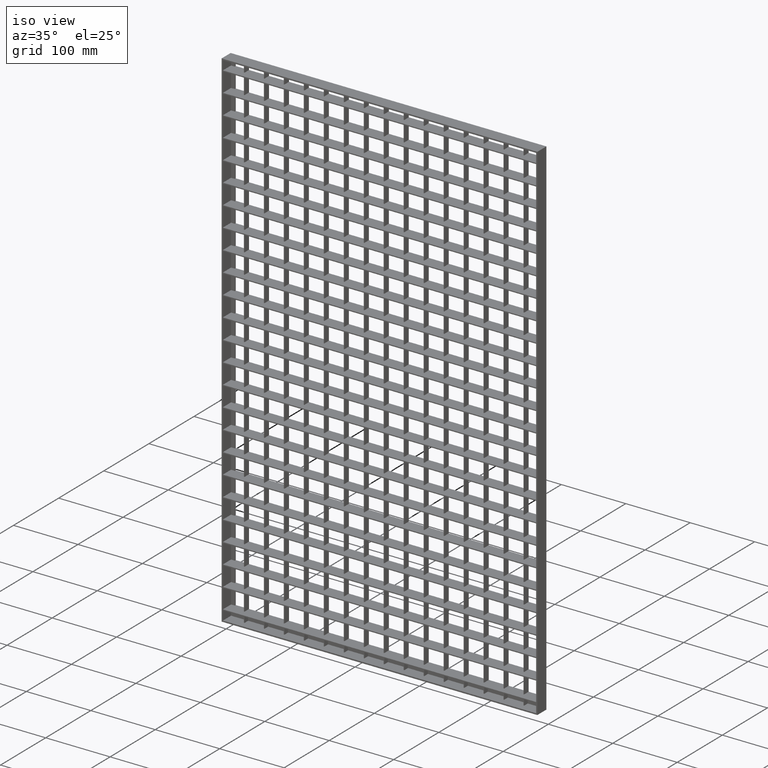
[diagram: clean part render]
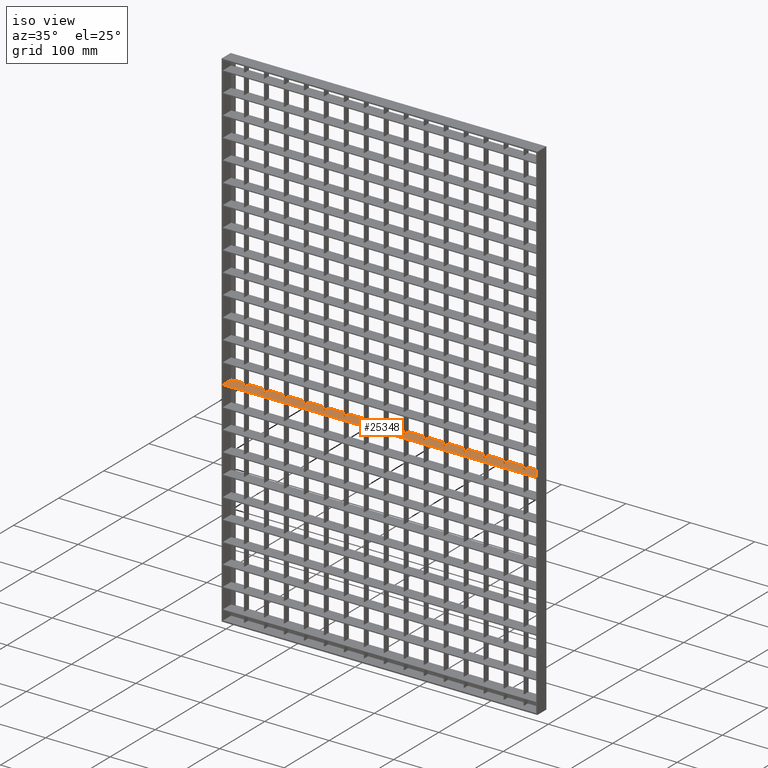
[diagram: same view with one face highlighted and labeled with its STEP entity id]
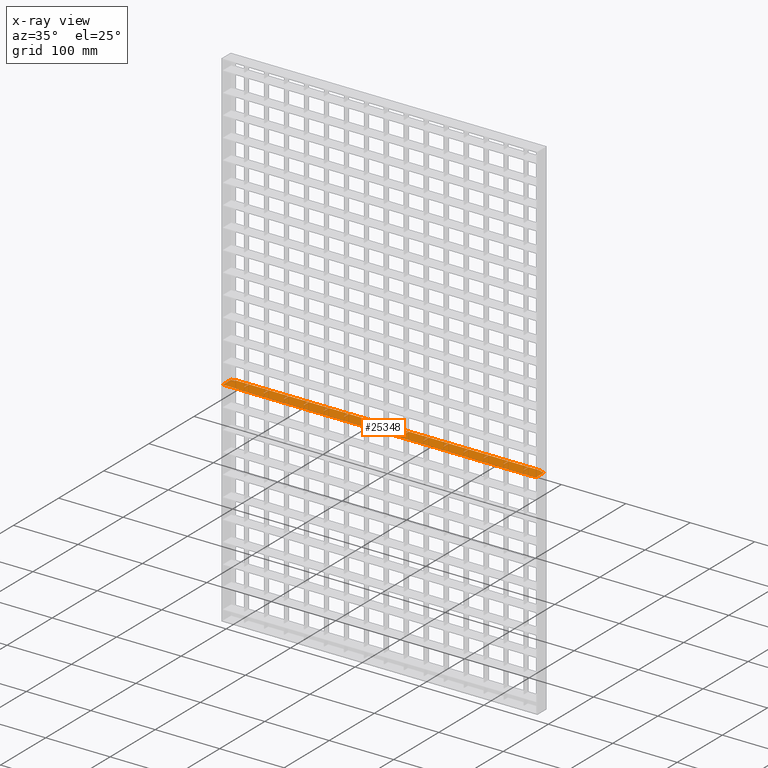
[diagram: x-ray of the same camera — body ghosted, the highlighted face saturated]
A machine part, iso view. The second image highlights one B-rep face of the part: STEP entity #25348.
The next image is the same camera in x-ray: the body ghosted, the highlighted face saturated — about 0% of this face is hidden behind the body in this view.
In plain terms, the highlighted planar face has unit normal (0, 0, -1).
Its self-contained STEP definition (entity closure, byte-faithful):
#131 = CARTESIAN_POINT ( 'NONE',  ( 213.5000000000000000, 10.00000000000000400, -457.2500000000000000 ) ) ;
#1204 = DIRECTION ( 'NONE',  ( 0.0000000000000000000, 1.000000000000000000, 0.0000000000000000000 ) ) ;
#1214 = VECTOR ( 'NONE', #54880, 1000.000000000000000 ) ;
#1441 = CARTESIAN_POINT ( 'NONE',  ( 508.0561711201314700, 1.509209424099822200E-013, -457.2500000000000000 ) ) ;
#1486 = EDGE_CURVE ( 'NONE', #22125, #49605, #38620, .T. ) ;
#1633 = CARTESIAN_POINT ( 'NONE',  ( 508.0561711201314700, 1.405126015541213700E-013, -457.2500000000000000 ) ) ;
#1742 = EDGE_CURVE ( 'NONE', #27841, #26210, #31466, .T. ) ;
#1774 = CARTESIAN_POINT ( 'NONE',  ( 337.5000000000000600, 3.964497668408261800E-015, -457.2500000000000000 ) ) ;
#1887 = VECTOR ( 'NONE', #24102, 1000.000000000000000 ) ;
#1902 = EDGE_CURVE ( 'NONE', #54194, #35179, #2663, .T. ) ;
#2077 = CARTESIAN_POINT ( 'NONE',  ( 214.5000000000000300, 3.469446951953614200E-015, -457.2500000000000000 ) ) ;
#2174 = DIRECTION ( 'NONE',  ( 0.0000000000000000000, 0.0000000000000000000, -1.000000000000000000 ) ) ;
#2291 = VECTOR ( 'NONE', #57476, 1000.000000000000000 ) ;
#2507 = EDGE_CURVE ( 'NONE', #40190, #31568, #8091, .T. ) ;
#2518 = CARTESIAN_POINT ( 'NONE',  ( 2.000000000000003600, 8.000000000000001800, -457.2500000000000000 ) ) ;
#2610 = CARTESIAN_POINT ( 'NONE',  ( 214.5000000000000300, -9.999999999999845500, -457.2500000000000000 ) ) ;
#2612 = CARTESIAN_POINT ( 'NONE',  ( 508.0561711201314700, 10.00000000000015500, -457.2500000000000000 ) ) ;
#2663 = LINE ( 'NONE', #19666, #58254 ) ;
#3034 = EDGE_CURVE ( 'NONE', #35138, #11036, #19958, .T. ) ;
#3037 = EDGE_CURVE ( 'NONE', #10057, #54395, #34032, .T. ) ;
#3043 = EDGE_CURVE ( 'NONE', #34307, #10675, #53780, .T. ) ;
#3047 = EDGE_CURVE ( 'NONE', #45698, #18253, #29795, .T. ) ;
#3051 = VECTOR ( 'NONE', #10976, 1000.000000000000000 ) ;
#3099 = CARTESIAN_POINT ( 'NONE',  ( 508.0561711201314700, 10.00000000000015500, -457.2500000000000000 ) ) ;
#3237 = LINE ( 'NONE', #4039, #52558 ) ;
#3251 = EDGE_CURVE ( 'NONE', #15087, #24302, #12218, .T. ) ;
#3352 = CARTESIAN_POINT ( 'NONE',  ( 214.5000000000000300, 10.00000000000006400, -457.2500000000000000 ) ) ;
#3357 = EDGE_CURVE ( 'NONE', #26376, #34654, #12161, .T. ) ;
#3399 = CARTESIAN_POINT ( 'NONE',  ( 2.000000000000003600, -10.00000000000000000, -457.2500000000000000 ) ) ;
#3533 = DIRECTION ( 'NONE',  ( -1.000000000000000000, -3.061616997868382600E-016, 0.0000000000000000000 ) ) ;
#3596 = CARTESIAN_POINT ( 'NONE',  ( 461.5000000000000600, 3.964497668408261800E-015, -457.2500000000000000 ) ) ;
#3711 = LINE ( 'NONE', #47615, #47292 ) ;
#3949 = CARTESIAN_POINT ( 'NONE',  ( 151.4999999999999700, -9.999999999999845500, -457.2500000000000000 ) ) ;
#4039 = CARTESIAN_POINT ( 'NONE',  ( 508.0561711201314700, 10.00000000000015500, -457.2500000000000000 ) ) ;
#4222 = VECTOR ( 'NONE', #10872, 1000.000000000000000 ) ;
#4500 = LINE ( 'NONE', #15315, #27707 ) ;
#5011 = CARTESIAN_POINT ( 'NONE',  ( 431.5000000000000600, 10.00000000000013000, -457.2500000000000000 ) ) ;
#5022 = EDGE_CURVE ( 'NONE', #39192, #13358, #47223, .T. ) ;
#5282 = CARTESIAN_POINT ( 'NONE',  ( 182.5000000000000000, -9.999999999999845500, -457.2500000000000000 ) ) ;
#5400 = CARTESIAN_POINT ( 'NONE',  ( 488.0000000000000600, -10.00000000000000200, -457.2500000000000000 ) ) ;
#5641 = EDGE_CURVE ( 'NONE', #35138, #31380, #11200, .T. ) ;
#5718 = DIRECTION ( 'NONE',  ( -1.000000000000000000, -3.061616997868382600E-016, 0.0000000000000000000 ) ) ;
#5844 = DIRECTION ( 'NONE',  ( 0.0000000000000000000, -1.000000000000000000, 0.0000000000000000000 ) ) ;
#5992 = DIRECTION ( 'NONE',  ( 1.000000000000000000, -3.061616997868381200E-016, 0.0000000000000000000 ) ) ;
#6245 = DIRECTION ( 'NONE',  ( -1.000000000000000000, -3.061616997868382600E-016, 0.0000000000000000000 ) ) ;
#6285 = CARTESIAN_POINT ( 'NONE',  ( 508.0561711201314700, 10.00000000000015500, -457.2500000000000000 ) ) ;
#6311 = CARTESIAN_POINT ( 'NONE',  ( 121.5000000000000000, -9.999999999999845500, -457.2500000000000000 ) ) ;
#6423 = LINE ( 'NONE', #29311, #28899 ) ;
#6437 = DIRECTION ( 'NONE',  ( 0.0000000000000000000, -1.000000000000000000, 0.0000000000000000000 ) ) ;
#6588 = VECTOR ( 'NONE', #45817, 1000.000000000000000 ) ;
#6630 = CARTESIAN_POINT ( 'NONE',  ( 28.49999999999997200, -9.999999999999845500, -457.2500000000000000 ) ) ;
#6649 = LINE ( 'NONE', #20410, #8723 ) ;
#6661 = EDGE_CURVE ( 'NONE', #43659, #50646, #13954, .T. ) ;
#6690 = CARTESIAN_POINT ( 'NONE',  ( 59.50000000000000000, 3.469446951953614200E-015, -457.2500000000000000 ) ) ;
#6742 = VERTEX_POINT ( 'NONE', #19843 ) ;
#6900 = ORIENTED_EDGE ( 'NONE', *, *, #39560, .F. ) ;
#6983 = ORIENTED_EDGE ( 'NONE', *, *, #3047, .F. ) ;
#7262 = ORIENTED_EDGE ( 'NONE', *, *, #32854, .T. ) ;
#7263 = DIRECTION ( 'NONE',  ( -1.000000000000000000, -3.061616997868382600E-016, 0.0000000000000000000 ) ) ;
#7270 = EDGE_CURVE ( 'NONE', #34263, #21300, #10327, .T. ) ;
#7281 = DIRECTION ( 'NONE',  ( 0.0000000000000000000, 1.000000000000000000, 0.0000000000000000000 ) ) ;
#7449 = EDGE_CURVE ( 'NONE', #51019, #13258, #27839, .T. ) ;
#7451 = CARTESIAN_POINT ( 'NONE',  ( 508.0561711201314700, 10.00000000000015500, -457.2500000000000000 ) ) ;
#7544 = ORIENTED_EDGE ( 'NONE', *, *, #24046, .T. ) ;
#7808 = CARTESIAN_POINT ( 'NONE',  ( 244.5000000000000000, 2.575921507436527000E-015, -457.2500000000000000 ) ) ;
#7828 = CARTESIAN_POINT ( 'NONE',  ( 508.0561711201314700, 1.214306433183765000E-013, -457.2500000000000000 ) ) ;
#7958 = LINE ( 'NONE', #12445, #2291 ) ;
#7990 = VECTOR ( 'NONE', #51540, 1000.000000000000000 ) ;
#8010 = EDGE_CURVE ( 'NONE', #56343, #30607, #35184, .T. ) ;
#8033 = VECTOR ( 'NONE', #17922, 1000.000000000000000 ) ;
#8064 = LINE ( 'NONE', #20283, #18625 ) ;
#8091 = LINE ( 'NONE', #23507, #47488 ) ;
#8123 = LINE ( 'NONE', #8291, #40514 ) ;
#8283 = CARTESIAN_POINT ( 'NONE',  ( 28.49999999999997200, 3.469446951953614200E-015, -457.2500000000000000 ) ) ;
#8291 = CARTESIAN_POINT ( 'NONE',  ( 508.0561711201314700, -6.765421556309547700E-014, -457.2500000000000000 ) ) ;
#8659 = EDGE_CURVE ( 'NONE', #44707, #23599, #30843, .T. ) ;
#8673 = CARTESIAN_POINT ( 'NONE',  ( 461.5000000000000600, -9.999999999999845500, -457.2500000000000000 ) ) ;
#8723 = VECTOR ( 'NONE', #30381, 1000.000000000000000 ) ;
#8995 = CARTESIAN_POINT ( 'NONE',  ( 213.4999999999999700, 3.493249669905384600E-015, -457.2500000000000000 ) ) ;
#9409 = CARTESIAN_POINT ( 'NONE',  ( 368.5000000000001100, 3.964497668408261800E-015, -457.2500000000000000 ) ) ;
#9410 = EDGE_CURVE ( 'NONE', #26210, #44479, #58230, .T. ) ;
#9430 = ORIENTED_EDGE ( 'NONE', *, *, #1486, .T. ) ;
#9461 = DIRECTION ( 'NONE',  ( 0.0000000000000000000, 1.000000000000000000, 0.0000000000000000000 ) ) ;
#9553 = VERTEX_POINT ( 'NONE', #1774 ) ;
#9792 = EDGE_LOOP ( 'NONE', ( #23166, #50227, #39499, #49020, #6900, #55550, #26658, #11561, #42755, #46594, #51764, #35750, #48865, #43367, #21502, #36230, #57658, #34074, #50046, #7544, #42943, #29379, #22386, #36331, #57828, #56617, #49933, #12266, #25199, #27860, #17281, #33593, #26310, #32721, #22593, #22744, #48317, #11702, #25019, #52804, #23929, #39799, #50034, #57757, #10190, #16602, #7262, #35615, #35127, #22206, #15020, #57863, #45295, #36084, #16688, #9430, #29181, #33234, #12095, #35420, #22794, #6983, #27337, #13417, #39752, #34592, #41890, #20922 ) ) ;
#10057 = VERTEX_POINT ( 'NONE', #131 ) ;
#10113 = CARTESIAN_POINT ( 'NONE',  ( 27.49999999999996800, 3.793048216788109300E-015, -457.2500000000000000 ) ) ;
#10128 = VECTOR ( 'NONE', #21982, 1000.000000000000000 ) ;
#10190 = ORIENTED_EDGE ( 'NONE', *, *, #28179, .T. ) ;
#10327 = LINE ( 'NONE', #55732, #20883 ) ;
#10343 = EDGE_CURVE ( 'NONE', #21484, #16063, #18013, .T. ) ;
#10389 = EDGE_CURVE ( 'NONE', #50646, #16542, #8123, .T. ) ;
#10437 = EDGE_CURVE ( 'NONE', #6742, #16097, #18691, .T. ) ;
#10531 = CARTESIAN_POINT ( 'NONE',  ( 27.49999999999999600, 10.00000000000000400, -457.2500000000000000 ) ) ;
#10659 = VECTOR ( 'NONE', #38732, 1000.000000000000000 ) ;
#10675 = VERTEX_POINT ( 'NONE', #32490 ) ;
#10798 = VERTEX_POINT ( 'NONE', #20480 ) ;
#10872 = DIRECTION ( 'NONE',  ( -1.000000000000000000, -3.061616997868381200E-016, 0.0000000000000000000 ) ) ;
#10976 = DIRECTION ( 'NONE',  ( 1.000000000000000000, -3.061616997868381200E-016, 0.0000000000000000000 ) ) ;
#11002 = DIRECTION ( 'NONE',  ( 0.0000000000000000000, 1.000000000000000000, 0.0000000000000000000 ) ) ;
#11036 = VERTEX_POINT ( 'NONE', #26312 ) ;
#11077 = DIRECTION ( 'NONE',  ( 0.0000000000000000000, -1.000000000000000000, 0.0000000000000000000 ) ) ;
#11200 = LINE ( 'NONE', #30137, #25292 ) ;
#11500 = EDGE_CURVE ( 'NONE', #31568, #12216, #55180, .T. ) ;
#11561 = ORIENTED_EDGE ( 'NONE', *, *, #48436, .T. ) ;
#11563 = VERTEX_POINT ( 'NONE', #57887 ) ;
#11626 = CARTESIAN_POINT ( 'NONE',  ( 275.5000000000000000, 10.00000000000008300, -457.2500000000000000 ) ) ;
#11634 = VECTOR ( 'NONE', #11002, 1000.000000000000000 ) ;
#11702 = ORIENTED_EDGE ( 'NONE', *, *, #1902, .T. ) ;
#12026 = EDGE_CURVE ( 'NONE', #16542, #31380, #38948, .T. ) ;
#12095 = ORIENTED_EDGE ( 'NONE', *, *, #21102, .T. ) ;
#12161 = LINE ( 'NONE', #39861, #22020 ) ;
#12216 = VERTEX_POINT ( 'NONE', #13785 ) ;
#12218 = LINE ( 'NONE', #21575, #46696 ) ;
#12266 = ORIENTED_EDGE ( 'NONE', *, *, #36624, .T. ) ;
#12324 = LINE ( 'NONE', #47247, #53885 ) ;
#12445 = CARTESIAN_POINT ( 'NONE',  ( 27.49999999999996800, -9.999999999999845500, -457.2500000000000000 ) ) ;
#12962 = DIRECTION ( 'NONE',  ( 0.0000000000000000000, 1.000000000000000000, 0.0000000000000000000 ) ) ;
#13035 = LINE ( 'NONE', #33819, #41888 ) ;
#13167 = LINE ( 'NONE', #39268, #39901 ) ;
#13258 = VERTEX_POINT ( 'NONE', #38639 ) ;
#13358 = VERTEX_POINT ( 'NONE', #57511 ) ;
#13413 = CARTESIAN_POINT ( 'NONE',  ( 461.5000000000000600, 10.00000000000014000, -457.2500000000000000 ) ) ;
#13417 = ORIENTED_EDGE ( 'NONE', *, *, #28257, .F. ) ;
#13580 = CARTESIAN_POINT ( 'NONE',  ( 2.000000000000003600, 8.000000000000001800, -457.2500000000000000 ) ) ;
#13745 = CARTESIAN_POINT ( 'NONE',  ( 482.0000000000003400, 10.00000000000000200, -457.2500000000001100 ) ) ;
#13785 = CARTESIAN_POINT ( 'NONE',  ( 431.5000000000000000, 2.621885767589803600E-015, -457.2500000000000000 ) ) ;
#13798 = VECTOR ( 'NONE', #16585, 1000.000000000000000 ) ;
#13954 = LINE ( 'NONE', #28074, #1214 ) ;
#14013 = CARTESIAN_POINT ( 'NONE',  ( 89.50000000000002800, -9.999999999999845500, -457.2500000000000000 ) ) ;
#14223 = LINE ( 'NONE', #46658, #17636 ) ;
#14240 = EDGE_CURVE ( 'NONE', #32265, #27841, #8064, .T. ) ;
#14508 = EDGE_CURVE ( 'NONE', #44479, #57469, #34055, .T. ) ;
#14659 = CARTESIAN_POINT ( 'NONE',  ( 182.4999999999999400, 2.675854356397435000E-015, -457.2500000000000000 ) ) ;
#14899 = CARTESIAN_POINT ( 'NONE',  ( 275.5000000000000000, 3.964497668408261800E-015, -457.2500000000000000 ) ) ;
#14914 = DIRECTION ( 'NONE',  ( -1.000000000000000000, -3.061616997868382600E-016, 0.0000000000000000000 ) ) ;
#15020 = ORIENTED_EDGE ( 'NONE', *, *, #9410, .T. ) ;
#15087 = VERTEX_POINT ( 'NONE', #13745 ) ;
#15158 = CARTESIAN_POINT ( 'NONE',  ( 120.5000000000000000, 10.00000000000000400, -457.2500000000000000 ) ) ;
#15315 = CARTESIAN_POINT ( 'NONE',  ( 337.5000000000000600, -9.999999999999845500, -457.2500000000000000 ) ) ;
#15419 = DIRECTION ( 'NONE',  ( 1.000000000000000000, -3.061616997868380700E-016, 0.0000000000000000000 ) ) ;
#15432 = DIRECTION ( 'NONE',  ( -1.000000000000000000, -3.061616997868381200E-016, 0.0000000000000000000 ) ) ;
#15539 = EDGE_CURVE ( 'NONE', #16063, #21391, #20513, .T. ) ;
#15582 = PLANE ( 'NONE',  #54494 ) ;
#15607 = DIRECTION ( 'NONE',  ( 1.000000000000000000, -3.061616997868381200E-016, 0.0000000000000000000 ) ) ;
#15765 = LINE ( 'NONE', #37288, #24182 ) ;
#16027 = EDGE_CURVE ( 'NONE', #57469, #30368, #14223, .T. ) ;
#16063 = VERTEX_POINT ( 'NONE', #38969 ) ;
#16097 = VERTEX_POINT ( 'NONE', #3352 ) ;
#16129 = CARTESIAN_POINT ( 'NONE',  ( 213.5000000000000300, -9.999999999999845500, -457.2500000000000000 ) ) ;
#16455 = CARTESIAN_POINT ( 'NONE',  ( 183.5000000000000000, 3.469446951953614200E-015, -457.2500000000000000 ) ) ;
#16542 = VERTEX_POINT ( 'NONE', #46201 ) ;
#16585 = DIRECTION ( 'NONE',  ( -1.000000000000000000, -3.061616997868382600E-016, 0.0000000000000000000 ) ) ;
#16602 = ORIENTED_EDGE ( 'NONE', *, *, #18926, .T. ) ;
#16624 = DIRECTION ( 'NONE',  ( -1.000000000000000000, -3.061616997868382600E-016, 0.0000000000000000000 ) ) ;
#16688 = ORIENTED_EDGE ( 'NONE', *, *, #43339, .T. ) ;
#17195 = VECTOR ( 'NONE', #17684, 1000.000000000000000 ) ;
#17281 = ORIENTED_EDGE ( 'NONE', *, *, #21626, .T. ) ;
#17319 = DIRECTION ( 'NONE',  ( -1.000000000000000000, -3.061616997868382600E-016, 0.0000000000000000000 ) ) ;
#17484 = CARTESIAN_POINT ( 'NONE',  ( 8.000000000000007100, 10.00000000000000200, -457.2500000000000000 ) ) ;
#17562 = VERTEX_POINT ( 'NONE', #29377 ) ;
#17636 = VECTOR ( 'NONE', #24399, 1000.000000000000000 ) ;
#17684 = DIRECTION ( 'NONE',  ( 0.0000000000000000000, -1.000000000000000000, 0.0000000000000000000 ) ) ;
#17690 = CARTESIAN_POINT ( 'NONE',  ( 368.5000000000001100, 10.00000000000011200, -457.2500000000000000 ) ) ;
#17864 = VECTOR ( 'NONE', #51950, 1000.000000000000000 ) ;
#17922 = DIRECTION ( 'NONE',  ( 0.0000000000000000000, 1.000000000000000000, 0.0000000000000000000 ) ) ;
#18013 = LINE ( 'NONE', #2612, #13798 ) ;
#18253 = VERTEX_POINT ( 'NONE', #38975 ) ;
#18586 = CARTESIAN_POINT ( 'NONE',  ( 306.5000000000000600, 10.00000000000009200, -457.2500000000000000 ) ) ;
#18625 = VECTOR ( 'NONE', #51396, 1000.000000000000000 ) ;
#18691 = LINE ( 'NONE', #39368, #33432 ) ;
#18926 = EDGE_CURVE ( 'NONE', #49011, #10798, #25025, .T. ) ;
#19503 = CARTESIAN_POINT ( 'NONE',  ( 508.0561711201314700, -9.999999999999845500, -457.2500000000000000 ) ) ;
#19666 = CARTESIAN_POINT ( 'NONE',  ( 508.0561711201314700, 1.023486850826316200E-013, -457.2500000000000000 ) ) ;
#19740 = EDGE_CURVE ( 'NONE', #18253, #23757, #43282, .T. ) ;
#19822 = CARTESIAN_POINT ( 'NONE',  ( 430.5000000000000600, 3.964497668408261800E-015, -457.2500000000000000 ) ) ;
#19843 = CARTESIAN_POINT ( 'NONE',  ( 244.5000000000000000, 10.00000000000000400, -457.2500000000000000 ) ) ;
#19958 = LINE ( 'NONE', #42088, #6588 ) ;
#20003 = CARTESIAN_POINT ( 'NONE',  ( 508.0561711201314700, 10.00000000000015500, -457.2500000000000000 ) ) ;
#20080 = DIRECTION ( 'NONE',  ( 1.000000000000000000, 0.0000000000000000000, 0.0000000000000000000 ) ) ;
#20090 = LINE ( 'NONE', #45633, #25032 ) ;
#20104 = LINE ( 'NONE', #1441, #30545 ) ;
#20113 = CARTESIAN_POINT ( 'NONE',  ( 508.0561711201314700, -5.898059818321144100E-014, -457.2500000000000000 ) ) ;
#20192 = CARTESIAN_POINT ( 'NONE',  ( 488.0000000000000600, 8.000000000000001800, -457.2500000000001700 ) ) ;
#20274 = DIRECTION ( 'NONE',  ( -1.000000000000000000, 0.0000000000000000000, -0.0000000000000000000 ) ) ;
#20278 = DIRECTION ( 'NONE',  ( -1.000000000000000000, -3.061616997868382600E-016, 0.0000000000000000000 ) ) ;
#20283 = CARTESIAN_POINT ( 'NONE',  ( 90.50000000000002800, -9.999999999999845500, -457.2500000000000000 ) ) ;
#20366 = CARTESIAN_POINT ( 'NONE',  ( 307.5000000000000600, 10.00000000000009400, -457.2500000000000000 ) ) ;
#20410 = CARTESIAN_POINT ( 'NONE',  ( 120.5000000000000000, -9.999999999999845500, -457.2500000000000000 ) ) ;
#20425 = VERTEX_POINT ( 'NONE', #20366 ) ;
#20426 = CARTESIAN_POINT ( 'NONE',  ( 400.5000000000000000, -9.999999999999845500, -457.2500000000000000 ) ) ;
#20480 = CARTESIAN_POINT ( 'NONE',  ( 120.5000000000000000, 2.775787205358368300E-015, -457.2500000000000000 ) ) ;
#20513 = LINE ( 'NONE', #21699, #56436 ) ;
#20543 = DIRECTION ( 'NONE',  ( 0.0000000000000000000, 1.000000000000000000, 0.0000000000000000000 ) ) ;
#20821 = DIRECTION ( 'NONE',  ( -1.000000000000000000, -3.061616997868382600E-016, 0.0000000000000000000 ) ) ;
#20829 = DIRECTION ( 'NONE',  ( 0.0000000000000000000, -1.000000000000000000, 0.0000000000000000000 ) ) ;
#20883 = VECTOR ( 'NONE', #20278, 1000.000000000000000 ) ;
#20922 = ORIENTED_EDGE ( 'NONE', *, *, #47948, .T. ) ;
#21102 = EDGE_CURVE ( 'NONE', #21917, #50716, #7958, .T. ) ;
#21300 = VERTEX_POINT ( 'NONE', #41334 ) ;
#21391 = VERTEX_POINT ( 'NONE', #45642 ) ;
#21412 = LINE ( 'NONE', #26472, #17195 ) ;
#21458 = LINE ( 'NONE', #51236, #43975 ) ;
#21484 = VERTEX_POINT ( 'NONE', #24743 ) ;
#21502 = ORIENTED_EDGE ( 'NONE', *, *, #49582, .F. ) ;
#21510 = DIRECTION ( 'NONE',  ( 0.0000000000000000000, -1.000000000000000000, 0.0000000000000000000 ) ) ;
#21530 = VECTOR ( 'NONE', #57839, 1000.000000000000000 ) ;
#21575 = CARTESIAN_POINT ( 'NONE',  ( 482.0000000000001100, 8.000000000000001800, -457.2500000000000000 ) ) ;
#21626 = EDGE_CURVE ( 'NONE', #52456, #6742, #48651, .T. ) ;
#21677 = EDGE_CURVE ( 'NONE', #30607, #10057, #31736, .T. ) ;
#21699 = CARTESIAN_POINT ( 'NONE',  ( 152.4999999999999700, -9.999999999999845500, -457.2500000000000000 ) ) ;
#21917 = VERTEX_POINT ( 'NONE', #10113 ) ;
#21982 = DIRECTION ( 'NONE',  ( -1.000000000000000000, -3.061616997868380700E-016, 0.0000000000000000000 ) ) ;
#22020 = VECTOR ( 'NONE', #44580, 1000.000000000000000 ) ;
#22119 = CARTESIAN_POINT ( 'NONE',  ( 89.50000000000000000, 10.00000000000000400, -457.2500000000000000 ) ) ;
#22122 = EDGE_CURVE ( 'NONE', #30368, #40429, #25302, .T. ) ;
#22125 = VERTEX_POINT ( 'NONE', #25192 ) ;
#22206 = ORIENTED_EDGE ( 'NONE', *, *, #1742, .T. ) ;
#22386 = ORIENTED_EDGE ( 'NONE', *, *, #3034, .F. ) ;
#22484 = VERTEX_POINT ( 'NONE', #13413 ) ;
#22507 = CARTESIAN_POINT ( 'NONE',  ( 183.5000000000000600, 10.00000000000005500, -457.2500000000000000 ) ) ;
#22593 = ORIENTED_EDGE ( 'NONE', *, *, #21677, .T. ) ;
#22744 = ORIENTED_EDGE ( 'NONE', *, *, #3037, .T. ) ;
#22794 = ORIENTED_EDGE ( 'NONE', *, *, #19740, .F. ) ;
#23166 = ORIENTED_EDGE ( 'NONE', *, *, #8659, .F. ) ;
#23194 = CARTESIAN_POINT ( 'NONE',  ( 245.5000000000000000, 3.469446951953614200E-015, -457.2500000000000000 ) ) ;
#23377 = DIRECTION ( 'NONE',  ( -1.000000000000000000, -3.061616997868381200E-016, 0.0000000000000000000 ) ) ;
#23464 = CARTESIAN_POINT ( 'NONE',  ( 58.50000000000000000, -9.999999999999845500, -457.2500000000000000 ) ) ;
#23507 = CARTESIAN_POINT ( 'NONE',  ( 430.5000000000000600, -9.999999999999845500, -457.2500000000000000 ) ) ;
#23508 = CARTESIAN_POINT ( 'NONE',  ( 508.0561711201314700, 10.00000000000015500, -457.2500000000000000 ) ) ;
#23555 = FACE_OUTER_BOUND ( 'NONE', #9792, .T. ) ;
#23597 = DIRECTION ( 'NONE',  ( 0.0000000000000000000, -1.000000000000000000, 0.0000000000000000000 ) ) ;
#23599 = VERTEX_POINT ( 'NONE', #57607 ) ;
#23757 = VERTEX_POINT ( 'NONE', #17484 ) ;
#23929 = ORIENTED_EDGE ( 'NONE', *, *, #15539, .T. ) ;
#24046 = EDGE_CURVE ( 'NONE', #17562, #20425, #34306, .T. ) ;
#24075 = LINE ( 'NONE', #34045, #45198 ) ;
#24102 = DIRECTION ( 'NONE',  ( -1.000000000000000000, -3.061616997868382600E-016, 0.0000000000000000000 ) ) ;
#24125 = EDGE_CURVE ( 'NONE', #34654, #52456, #13167, .T. ) ;
#24182 = VECTOR ( 'NONE', #36485, 1000.000000000000000 ) ;
#24302 = VERTEX_POINT ( 'NONE', #44571 ) ;
#24327 = VECTOR ( 'NONE', #6437, 1000.000000000000000 ) ;
#24338 = DIRECTION ( 'NONE',  ( -1.000000000000000000, -3.061616997868382600E-016, 0.0000000000000000000 ) ) ;
#24399 = DIRECTION ( 'NONE',  ( 0.0000000000000000000, -1.000000000000000000, 0.0000000000000000000 ) ) ;
#24600 = CARTESIAN_POINT ( 'NONE',  ( 508.0561711201314700, -1.040834085586084300E-014, -457.2500000000000000 ) ) ;
#24641 = VECTOR ( 'NONE', #50985, 1000.000000000000000 ) ;
#24743 = CARTESIAN_POINT ( 'NONE',  ( 182.5000000000000000, 10.00000000000000400, -457.2500000000000000 ) ) ;
#24772 = EDGE_CURVE ( 'NONE', #27657, #45698, #32068, .T. ) ;
#24838 = VERTEX_POINT ( 'NONE', #3596 ) ;
#25019 = ORIENTED_EDGE ( 'NONE', *, *, #43947, .T. ) ;
#25025 = LINE ( 'NONE', #7828, #31315 ) ;
#25032 = VECTOR ( 'NONE', #5718, 1000.000000000000000 ) ;
#25192 = CARTESIAN_POINT ( 'NONE',  ( 58.50000000000000000, 10.00000000000000400, -457.2500000000000000 ) ) ;
#25199 = ORIENTED_EDGE ( 'NONE', *, *, #3357, .T. ) ;
#25216 = EDGE_CURVE ( 'NONE', #54316, #20425, #43279, .T. ) ;
#25292 = VECTOR ( 'NONE', #16624, 1000.000000000000000 ) ;
#25299 = EDGE_CURVE ( 'NONE', #40594, #21300, #13035, .T. ) ;
#25302 = LINE ( 'NONE', #1633, #4222 ) ;
#25348 = ADVANCED_FACE ( 'NONE', ( #23555 ), #15582, .F. ) ;
#25411 = VECTOR ( 'NONE', #54078, 1000.000000000000000 ) ;
#25464 = VECTOR ( 'NONE', #41202, 1000.000000000000000 ) ;
#25579 = DIRECTION ( 'NONE',  ( 1.000000000000000000, -3.061616997868380700E-016, 0.0000000000000000000 ) ) ;
#25918 = VECTOR ( 'NONE', #55571, 1000.000000000000000 ) ;
#25966 = VERTEX_POINT ( 'NONE', #20192 ) ;
#26061 = VECTOR ( 'NONE', #56846, 1000.000000000000000 ) ;
#26210 = VERTEX_POINT ( 'NONE', #30738 ) ;
#26310 = ORIENTED_EDGE ( 'NONE', *, *, #39810, .T. ) ;
#26312 = CARTESIAN_POINT ( 'NONE',  ( 306.5000000000000600, 3.964497668408261800E-015, -457.2500000000000000 ) ) ;
#26376 = VERTEX_POINT ( 'NONE', #54006 ) ;
#26421 = DIRECTION ( 'NONE',  ( 0.0000000000000000000, 1.000000000000000000, 0.0000000000000000000 ) ) ;
#26472 = CARTESIAN_POINT ( 'NONE',  ( 399.5000000000000000, -9.999999999999845500, -457.2500000000000000 ) ) ;
#26573 = VERTEX_POINT ( 'NONE', #5400 ) ;
#26658 = ORIENTED_EDGE ( 'NONE', *, *, #2507, .F. ) ;
#26699 = LINE ( 'NONE', #6311, #49281 ) ;
#27337 = ORIENTED_EDGE ( 'NONE', *, *, #24772, .F. ) ;
#27657 = VERTEX_POINT ( 'NONE', #51843 ) ;
#27707 = VECTOR ( 'NONE', #55650, 1000.000000000000000 ) ;
#27839 = LINE ( 'NONE', #3949, #21530 ) ;
#27841 = VERTEX_POINT ( 'NONE', #39001 ) ;
#27860 = ORIENTED_EDGE ( 'NONE', *, *, #24125, .T. ) ;
#28074 = CARTESIAN_POINT ( 'NONE',  ( 275.5000000000000000, -9.999999999999845500, -457.2500000000000000 ) ) ;
#28179 = EDGE_CURVE ( 'NONE', #46243, #49011, #26699, .T. ) ;
#28257 = EDGE_CURVE ( 'NONE', #26573, #27657, #54952, .T. ) ;
#28410 = VECTOR ( 'NONE', #17319, 1000.000000000000000 ) ;
#28439 = CARTESIAN_POINT ( 'NONE',  ( 508.0561711201314700, 10.00000000000015500, -457.2500000000000000 ) ) ;
#28773 = EDGE_CURVE ( 'NONE', #10675, #13358, #6423, .T. ) ;
#28899 = VECTOR ( 'NONE', #43673, 1000.000000000000000 ) ;
#28913 = VECTOR ( 'NONE', #7281, 1000.000000000000000 ) ;
#29181 = ORIENTED_EDGE ( 'NONE', *, *, #55234, .T. ) ;
#29193 = VECTOR ( 'NONE', #1204, 1000.000000000000000 ) ;
#29205 = VERTEX_POINT ( 'NONE', #15158 ) ;
#29311 = CARTESIAN_POINT ( 'NONE',  ( 369.5000000000001100, -9.999999999999845500, -457.2500000000000000 ) ) ;
#29377 = CARTESIAN_POINT ( 'NONE',  ( 337.5000000000000600, 10.00000000000010300, -457.2500000000000000 ) ) ;
#29379 = ORIENTED_EDGE ( 'NONE', *, *, #49486, .F. ) ;
#29384 = VECTOR ( 'NONE', #23377, 1000.000000000000000 ) ;
#29795 = LINE ( 'NONE', #2518, #7990 ) ;
#30137 = CARTESIAN_POINT ( 'NONE',  ( 508.0561711201314700, 10.00000000000015500, -457.2500000000000000 ) ) ;
#30368 = VERTEX_POINT ( 'NONE', #6690 ) ;
#30381 = DIRECTION ( 'NONE',  ( 0.0000000000000000000, 1.000000000000000000, 0.0000000000000000000 ) ) ;
#30382 = EDGE_CURVE ( 'NONE', #22484, #39503, #40658, .T. ) ;
#30422 = CARTESIAN_POINT ( 'NONE',  ( 338.5000000000000000, 3.339348232136816800E-015, -457.2500000000000000 ) ) ;
#30545 = VECTOR ( 'NONE', #15432, 1000.000000000000000 ) ;
#30602 = LINE ( 'NONE', #46595, #48944 ) ;
#30607 = VERTEX_POINT ( 'NONE', #8995 ) ;
#30738 = CARTESIAN_POINT ( 'NONE',  ( 89.49999999999997200, 3.693115367827201400E-015, -457.2500000000000000 ) ) ;
#30843 = LINE ( 'NONE', #31138, #31575 ) ;
#31113 = VECTOR ( 'NONE', #15419, 1000.000000000000000 ) ;
#31138 = CARTESIAN_POINT ( 'NONE',  ( 462.5000000000000600, -9.999999999999845500, -457.2500000000000000 ) ) ;
#31315 = VECTOR ( 'NONE', #48525, 1000.000000000000000 ) ;
#31380 = VERTEX_POINT ( 'NONE', #36811 ) ;
#31466 = LINE ( 'NONE', #32232, #29384 ) ;
#31568 = VERTEX_POINT ( 'NONE', #19822 ) ;
#31575 = VECTOR ( 'NONE', #26421, 1000.000000000000000 ) ;
#31736 = LINE ( 'NONE', #16129, #28913 ) ;
#31763 = EDGE_CURVE ( 'NONE', #29205, #32265, #3237, .T. ) ;
#32027 = LINE ( 'NONE', #20426, #50371 ) ;
#32063 = LINE ( 'NONE', #6630, #24327 ) ;
#32068 = LINE ( 'NONE', #3399, #55407 ) ;
#32232 = CARTESIAN_POINT ( 'NONE',  ( 508.0561711201314700, 1.318389841742373400E-013, -457.2500000000000000 ) ) ;
#32265 = VERTEX_POINT ( 'NONE', #47495 ) ;
#32490 = CARTESIAN_POINT ( 'NONE',  ( 369.5000000000000600, 2.521952918628873500E-015, -457.2500000000000000 ) ) ;
#32551 = LINE ( 'NONE', #20113, #31113 ) ;
#32721 = ORIENTED_EDGE ( 'NONE', *, *, #8010, .T. ) ;
#32854 = EDGE_CURVE ( 'NONE', #10798, #29205, #6649, .T. ) ;
#33049 = VECTOR ( 'NONE', #58200, 1000.000000000000000 ) ;
#33217 = VECTOR ( 'NONE', #15607, 1000.000000000000000 ) ;
#33234 = ORIENTED_EDGE ( 'NONE', *, *, #39563, .T. ) ;
#33288 = VECTOR ( 'NONE', #51740, 1000.000000000000000 ) ;
#33432 = VECTOR ( 'NONE', #48430, 1000.000000000000000 ) ;
#33593 = ORIENTED_EDGE ( 'NONE', *, *, #10437, .T. ) ;
#33819 = CARTESIAN_POINT ( 'NONE',  ( 338.5000000000000600, -9.999999999999845500, -457.2500000000000000 ) ) ;
#34032 = LINE ( 'NONE', #6285, #17864 ) ;
#34045 = CARTESIAN_POINT ( 'NONE',  ( 368.5000000000001100, -9.999999999999845500, -457.2500000000000000 ) ) ;
#34055 = LINE ( 'NONE', #57824, #28410 ) ;
#34074 = ORIENTED_EDGE ( 'NONE', *, *, #42848, .F. ) ;
#34263 = VERTEX_POINT ( 'NONE', #17690 ) ;
#34306 = LINE ( 'NONE', #3099, #56880 ) ;
#34307 = VERTEX_POINT ( 'NONE', #9409 ) ;
#34500 = CARTESIAN_POINT ( 'NONE',  ( 58.49999999999994300, 2.875720054319251800E-015, -457.2500000000000000 ) ) ;
#34592 = ORIENTED_EDGE ( 'NONE', *, *, #43609, .F. ) ;
#34654 = VERTEX_POINT ( 'NONE', #23194 ) ;
#34841 = LINE ( 'NONE', #23508, #45432 ) ;
#34892 = DIRECTION ( 'NONE',  ( -1.000000000000000000, -3.061616997868382600E-016, 0.0000000000000000000 ) ) ;
#35127 = ORIENTED_EDGE ( 'NONE', *, *, #14240, .T. ) ;
#35138 = VERTEX_POINT ( 'NONE', #18586 ) ;
#35179 = VERTEX_POINT ( 'NONE', #14659 ) ;
#35184 = LINE ( 'NONE', #40288, #33049 ) ;
#35403 = LINE ( 'NONE', #40272, #10128 ) ;
#35420 = ORIENTED_EDGE ( 'NONE', *, *, #56481, .T. ) ;
#35615 = ORIENTED_EDGE ( 'NONE', *, *, #31763, .T. ) ;
#35750 = ORIENTED_EDGE ( 'NONE', *, *, #5022, .T. ) ;
#35977 = VECTOR ( 'NONE', #49183, 1000.000000000000000 ) ;
#36084 = ORIENTED_EDGE ( 'NONE', *, *, #22122, .T. ) ;
#36181 = VERTEX_POINT ( 'NONE', #52336 ) ;
#36230 = ORIENTED_EDGE ( 'NONE', *, *, #7270, .T. ) ;
#36331 = ORIENTED_EDGE ( 'NONE', *, *, #5641, .T. ) ;
#36485 = DIRECTION ( 'NONE',  ( 1.000000000000000000, -3.061616997868380700E-016, 0.0000000000000000000 ) ) ;
#36624 = EDGE_CURVE ( 'NONE', #43659, #26376, #34841, .T. ) ;
#36811 = CARTESIAN_POINT ( 'NONE',  ( 276.5000000000000000, 10.00000000000008300, -457.2500000000000000 ) ) ;
#36896 = VECTOR ( 'NONE', #6245, 1000.000000000000000 ) ;
#37288 = CARTESIAN_POINT ( 'NONE',  ( 508.0561711201314700, -4.857225732735059900E-014, -457.2500000000000000 ) ) ;
#37475 = EDGE_CURVE ( 'NONE', #54395, #54194, #12324, .T. ) ;
#37595 = CARTESIAN_POINT ( 'NONE',  ( 307.5000000000000600, -9.999999999999845500, -457.2500000000000000 ) ) ;
#37881 = VECTOR ( 'NONE', #3533, 1000.000000000000000 ) ;
#37920 = VECTOR ( 'NONE', #11077, 1000.000000000000000 ) ;
#37946 = CARTESIAN_POINT ( 'NONE',  ( 7.999999999999996400, 8.000000000000001800, -457.2500000000000000 ) ) ;
#38261 = EDGE_CURVE ( 'NONE', #26573, #25966, #43911, .T. ) ;
#38620 = LINE ( 'NONE', #57253, #37881 ) ;
#38639 = CARTESIAN_POINT ( 'NONE',  ( 151.5000000000000000, 10.00000000000000400, -457.2500000000000000 ) ) ;
#38732 = DIRECTION ( 'NONE',  ( 0.0000000000000000000, 1.000000000000000000, 0.0000000000000000000 ) ) ;
#38948 = LINE ( 'NONE', #52181, #42431 ) ;
#38969 = CARTESIAN_POINT ( 'NONE',  ( 152.5000000000000300, 10.00000000000004600, -457.2500000000000000 ) ) ;
#38975 = CARTESIAN_POINT ( 'NONE',  ( 7.999999999999996400, 8.000000000000001800, -457.2500000000000000 ) ) ;
#39001 = CARTESIAN_POINT ( 'NONE',  ( 90.50000000000002800, 3.469446951953614200E-015, -457.2500000000000000 ) ) ;
#39057 = CARTESIAN_POINT ( 'NONE',  ( 399.5000000000000000, 10.00000000000012100, -457.2500000000000000 ) ) ;
#39192 = VERTEX_POINT ( 'NONE', #39057 ) ;
#39268 = CARTESIAN_POINT ( 'NONE',  ( 508.0561711201314700, 8.326672684688674100E-014, -457.2500000000000000 ) ) ;
#39368 = CARTESIAN_POINT ( 'NONE',  ( 508.0561711201314700, 10.00000000000015500, -457.2500000000000000 ) ) ;
#39499 = ORIENTED_EDGE ( 'NONE', *, *, #49734, .F. ) ;
#39503 = VERTEX_POINT ( 'NONE', #5011 ) ;
#39560 = EDGE_CURVE ( 'NONE', #12216, #39503, #43000, .T. ) ;
#39563 = EDGE_CURVE ( 'NONE', #51480, #21917, #20104, .T. ) ;
#39644 = CARTESIAN_POINT ( 'NONE',  ( 400.4999999999999400, 3.439281081097755900E-015, -457.2500000000000000 ) ) ;
#39752 = ORIENTED_EDGE ( 'NONE', *, *, #38261, .T. ) ;
#39799 = ORIENTED_EDGE ( 'NONE', *, *, #56143, .T. ) ;
#39810 = EDGE_CURVE ( 'NONE', #16097, #56343, #47066, .T. ) ;
#39861 = CARTESIAN_POINT ( 'NONE',  ( 245.5000000000000000, -9.999999999999845500, -457.2500000000000000 ) ) ;
#39901 = VECTOR ( 'NONE', #48145, 1000.000000000000000 ) ;
#40190 = VERTEX_POINT ( 'NONE', #46936 ) ;
#40272 = CARTESIAN_POINT ( 'NONE',  ( 508.0561711201314700, 1.127570259384924600E-013, -457.2500000000000000 ) ) ;
#40288 = CARTESIAN_POINT ( 'NONE',  ( 508.0561711201314700, 9.367506770274758300E-014, -457.2500000000000000 ) ) ;
#40289 = LINE ( 'NONE', #24600, #33217 ) ;
#40337 = LINE ( 'NONE', #23464, #25464 ) ;
#40429 = VERTEX_POINT ( 'NONE', #34500 ) ;
#40514 = VECTOR ( 'NONE', #25579, 1000.000000000000000 ) ;
#40594 = VERTEX_POINT ( 'NONE', #30422 ) ;
#40658 = LINE ( 'NONE', #46796, #55500 ) ;
#41202 = DIRECTION ( 'NONE',  ( 0.0000000000000000000, 1.000000000000000000, 0.0000000000000000000 ) ) ;
#41334 = CARTESIAN_POINT ( 'NONE',  ( 338.5000000000000600, 10.00000000000010300, -457.2500000000000000 ) ) ;
#41538 = CARTESIAN_POINT ( 'NONE',  ( 59.50000000000005000, 10.00000000000001800, -457.2500000000000000 ) ) ;
#41888 = VECTOR ( 'NONE', #51796, 1000.000000000000000 ) ;
#41890 = ORIENTED_EDGE ( 'NONE', *, *, #3251, .F. ) ;
#42088 = CARTESIAN_POINT ( 'NONE',  ( 306.5000000000000600, -9.999999999999845500, -457.2500000000000000 ) ) ;
#42098 = EDGE_CURVE ( 'NONE', #13258, #46243, #20090, .T. ) ;
#42319 = LINE ( 'NONE', #5282, #25411 ) ;
#42345 = CARTESIAN_POINT ( 'NONE',  ( 431.5000000000000600, -9.999999999999845500, -457.2500000000000000 ) ) ;
#42431 = VECTOR ( 'NONE', #56504, 1000.000000000000000 ) ;
#42755 = ORIENTED_EDGE ( 'NONE', *, *, #48076, .F. ) ;
#42848 = EDGE_CURVE ( 'NONE', #9553, #40594, #15765, .T. ) ;
#42943 = ORIENTED_EDGE ( 'NONE', *, *, #25216, .F. ) ;
#43000 = LINE ( 'NONE', #42345, #25918 ) ;
#43279 = LINE ( 'NONE', #37595, #29193 ) ;
#43282 = LINE ( 'NONE', #37946, #11634 ) ;
#43339 = EDGE_CURVE ( 'NONE', #40429, #22125, #40337, .T. ) ;
#43367 = ORIENTED_EDGE ( 'NONE', *, *, #3043, .F. ) ;
#43442 = CARTESIAN_POINT ( 'NONE',  ( 121.5000000000000000, 3.469446951953614200E-015, -457.2500000000000000 ) ) ;
#43609 = EDGE_CURVE ( 'NONE', #24302, #25966, #3711, .T. ) ;
#43659 = VERTEX_POINT ( 'NONE', #11626 ) ;
#43673 = DIRECTION ( 'NONE',  ( 0.0000000000000000000, 1.000000000000000000, 0.0000000000000000000 ) ) ;
#43911 = LINE ( 'NONE', #44844, #8033 ) ;
#43947 = EDGE_CURVE ( 'NONE', #35179, #21484, #42319, .T. ) ;
#43975 = VECTOR ( 'NONE', #5992, 1000.000000000000000 ) ;
#44479 = VERTEX_POINT ( 'NONE', #22119 ) ;
#44532 = CARTESIAN_POINT ( 'NONE',  ( 151.4999999999999700, 3.593182518866305200E-015, -457.2500000000000000 ) ) ;
#44571 = CARTESIAN_POINT ( 'NONE',  ( 482.0000000000001100, 8.000000000000001800, -457.2500000000001100 ) ) ;
#44580 = DIRECTION ( 'NONE',  ( 0.0000000000000000000, -1.000000000000000000, 0.0000000000000000000 ) ) ;
#44707 = VERTEX_POINT ( 'NONE', #50070 ) ;
#44844 = CARTESIAN_POINT ( 'NONE',  ( 488.0000000000000600, -9.999999999999845500, -457.2500000000000000 ) ) ;
#45198 = VECTOR ( 'NONE', #57272, 1000.000000000000000 ) ;
#45295 = ORIENTED_EDGE ( 'NONE', *, *, #16027, .T. ) ;
#45432 = VECTOR ( 'NONE', #14914, 1000.000000000000000 ) ;
#45633 = CARTESIAN_POINT ( 'NONE',  ( 508.0561711201314700, 10.00000000000015500, -457.2500000000000000 ) ) ;
#45642 = CARTESIAN_POINT ( 'NONE',  ( 152.4999999999999700, 3.469446951953614200E-015, -457.2500000000000000 ) ) ;
#45698 = VERTEX_POINT ( 'NONE', #13580 ) ;
#45817 = DIRECTION ( 'NONE',  ( 0.0000000000000000000, -1.000000000000000000, 0.0000000000000000000 ) ) ;
#46201 = CARTESIAN_POINT ( 'NONE',  ( 276.4999999999999400, 3.239415383175920600E-015, -457.2500000000000000 ) ) ;
#46243 = VERTEX_POINT ( 'NONE', #57946 ) ;
#46594 = ORIENTED_EDGE ( 'NONE', *, *, #56998, .F. ) ;
#46595 = CARTESIAN_POINT ( 'NONE',  ( 508.0561711201314700, 10.00000000000015500, -457.2500000000000000 ) ) ;
#46658 = CARTESIAN_POINT ( 'NONE',  ( 59.50000000000000000, -9.999999999999845500, -457.2500000000000000 ) ) ;
#46696 = VECTOR ( 'NONE', #20829, 1000.000000000000000 ) ;
#46796 = CARTESIAN_POINT ( 'NONE',  ( 508.0561711201314700, 10.00000000000015500, -457.2500000000000000 ) ) ;
#46936 = CARTESIAN_POINT ( 'NONE',  ( 430.5000000000000600, 10.00000000000013000, -457.2500000000000000 ) ) ;
#47025 = CARTESIAN_POINT ( 'NONE',  ( 508.0561711201314700, -9.999999999999845500, -457.2500000000000000 ) ) ;
#47066 = LINE ( 'NONE', #2610, #37920 ) ;
#47223 = LINE ( 'NONE', #7451, #26061 ) ;
#47247 = CARTESIAN_POINT ( 'NONE',  ( 183.5000000000000000, -9.999999999999845500, -457.2500000000000000 ) ) ;
#47292 = VECTOR ( 'NONE', #20080, 1000.000000000000000 ) ;
#47375 = CARTESIAN_POINT ( 'NONE',  ( 508.0561711201314700, -3.989863994746656300E-014, -457.2500000000000000 ) ) ;
#47488 = VECTOR ( 'NONE', #5844, 1000.000000000000000 ) ;
#47495 = CARTESIAN_POINT ( 'NONE',  ( 90.50000000000002800, 10.00000000000002700, -457.2500000000000000 ) ) ;
#47597 = CARTESIAN_POINT ( 'NONE',  ( 244.5000000000000000, -9.999999999999845500, -457.2500000000000000 ) ) ;
#47615 = CARTESIAN_POINT ( 'NONE',  ( 245.0000000000000000, 8.000000000000001800, -457.2500000000000000 ) ) ;
#47948 = EDGE_CURVE ( 'NONE', #15087, #23599, #30602, .T. ) ;
#48076 = EDGE_CURVE ( 'NONE', #52504, #11563, #32027, .T. ) ;
#48145 = DIRECTION ( 'NONE',  ( -1.000000000000000000, -3.061616997868380700E-016, 0.0000000000000000000 ) ) ;
#48227 = CARTESIAN_POINT ( 'NONE',  ( 28.50000000000002500, 10.00000000000000700, -457.2500000000000000 ) ) ;
#48317 = ORIENTED_EDGE ( 'NONE', *, *, #37475, .T. ) ;
#48430 = DIRECTION ( 'NONE',  ( -1.000000000000000000, -3.061616997868382600E-016, 0.0000000000000000000 ) ) ;
#48436 = EDGE_CURVE ( 'NONE', #40190, #11563, #49581, .T. ) ;
#48492 = CARTESIAN_POINT ( 'NONE',  ( 307.5000000000000000, 2.422020069667958800E-015, -457.2500000000000000 ) ) ;
#48525 = DIRECTION ( 'NONE',  ( -1.000000000000000000, -3.061616997868380700E-016, 0.0000000000000000000 ) ) ;
#48651 = LINE ( 'NONE', #47597, #10659 ) ;
#48865 = ORIENTED_EDGE ( 'NONE', *, *, #28773, .F. ) ;
#48944 = VECTOR ( 'NONE', #24338, 1000.000000000000000 ) ;
#49011 = VERTEX_POINT ( 'NONE', #43442 ) ;
#49020 = ORIENTED_EDGE ( 'NONE', *, *, #30382, .T. ) ;
#49183 = DIRECTION ( 'NONE',  ( 0.0000000000000000000, -1.000000000000000000, 0.0000000000000000000 ) ) ;
#49281 = VECTOR ( 'NONE', #23597, 1000.000000000000000 ) ;
#49446 = EDGE_CURVE ( 'NONE', #24838, #44707, #40289, .T. ) ;
#49486 = EDGE_CURVE ( 'NONE', #11036, #54316, #32551, .T. ) ;
#49581 = LINE ( 'NONE', #20003, #36896 ) ;
#49582 = EDGE_CURVE ( 'NONE', #34263, #34307, #24075, .T. ) ;
#49605 = VERTEX_POINT ( 'NONE', #48227 ) ;
#49734 = EDGE_CURVE ( 'NONE', #22484, #24838, #55752, .T. ) ;
#49933 = ORIENTED_EDGE ( 'NONE', *, *, #6661, .F. ) ;
#50034 = ORIENTED_EDGE ( 'NONE', *, *, #7449, .T. ) ;
#50046 = ORIENTED_EDGE ( 'NONE', *, *, #58170, .F. ) ;
#50070 = CARTESIAN_POINT ( 'NONE',  ( 462.5000000000000000, 3.539213930058655200E-015, -457.2500000000000000 ) ) ;
#50227 = ORIENTED_EDGE ( 'NONE', *, *, #49446, .F. ) ;
#50371 = VECTOR ( 'NONE', #12962, 1000.000000000000000 ) ;
#50646 = VERTEX_POINT ( 'NONE', #14899 ) ;
#50716 = VERTEX_POINT ( 'NONE', #10531 ) ;
#50985 = DIRECTION ( 'NONE',  ( -1.000000000000000000, -3.061616997868382600E-016, 0.0000000000000000000 ) ) ;
#51019 = VERTEX_POINT ( 'NONE', #44532 ) ;
#51236 = CARTESIAN_POINT ( 'NONE',  ( 508.0561711201314700, -2.949029909160572100E-014, -457.2500000000000000 ) ) ;
#51396 = DIRECTION ( 'NONE',  ( 0.0000000000000000000, -1.000000000000000000, 0.0000000000000000000 ) ) ;
#51480 = VERTEX_POINT ( 'NONE', #8283 ) ;
#51540 = DIRECTION ( 'NONE',  ( 1.000000000000000000, 0.0000000000000000000, 0.0000000000000000000 ) ) ;
#51740 = DIRECTION ( 'NONE',  ( 1.000000000000000000, -3.061616997868381200E-016, 0.0000000000000000000 ) ) ;
#51764 = ORIENTED_EDGE ( 'NONE', *, *, #57971, .F. ) ;
#51796 = DIRECTION ( 'NONE',  ( 0.0000000000000000000, 1.000000000000000000, 0.0000000000000000000 ) ) ;
#51843 = CARTESIAN_POINT ( 'NONE',  ( 2.000000000000003600, -10.00000000000000000, -457.2500000000000000 ) ) ;
#51950 = DIRECTION ( 'NONE',  ( -1.000000000000000000, -3.061616997868382600E-016, 0.0000000000000000000 ) ) ;
#52181 = CARTESIAN_POINT ( 'NONE',  ( 276.5000000000000000, -9.999999999999845500, -457.2500000000000000 ) ) ;
#52336 = CARTESIAN_POINT ( 'NONE',  ( 399.5000000000000000, 3.964497668408261800E-015, -457.2500000000000000 ) ) ;
#52456 = VERTEX_POINT ( 'NONE', #7808 ) ;
#52504 = VERTEX_POINT ( 'NONE', #39644 ) ;
#52558 = VECTOR ( 'NONE', #34892, 1000.000000000000000 ) ;
#52804 = ORIENTED_EDGE ( 'NONE', *, *, #10343, .T. ) ;
#53349 = VECTOR ( 'NONE', #9461, 1000.000000000000000 ) ;
#53780 = LINE ( 'NONE', #47375, #33288 ) ;
#53885 = VECTOR ( 'NONE', #56318, 1000.000000000000000 ) ;
#54006 = CARTESIAN_POINT ( 'NONE',  ( 245.5000000000000000, 10.00000000000007500, -457.2500000000000000 ) ) ;
#54078 = DIRECTION ( 'NONE',  ( 0.0000000000000000000, 1.000000000000000000, 0.0000000000000000000 ) ) ;
#54194 = VERTEX_POINT ( 'NONE', #16455 ) ;
#54316 = VERTEX_POINT ( 'NONE', #48492 ) ;
#54395 = VERTEX_POINT ( 'NONE', #22507 ) ;
#54494 = AXIS2_PLACEMENT_3D ( 'NONE', #47025, #2174, #20274 ) ;
#54880 = DIRECTION ( 'NONE',  ( 0.0000000000000000000, -1.000000000000000000, 0.0000000000000000000 ) ) ;
#54952 = LINE ( 'NONE', #19503, #24641 ) ;
#55180 = LINE ( 'NONE', #56828, #3051 ) ;
#55234 = EDGE_CURVE ( 'NONE', #49605, #51480, #32063, .T. ) ;
#55407 = VECTOR ( 'NONE', #20543, 1000.000000000000000 ) ;
#55500 = VECTOR ( 'NONE', #7263, 1000.000000000000000 ) ;
#55503 = DIRECTION ( 'NONE',  ( -1.000000000000000000, -3.061616997868380700E-016, 0.0000000000000000000 ) ) ;
#55550 = ORIENTED_EDGE ( 'NONE', *, *, #11500, .F. ) ;
#55571 = DIRECTION ( 'NONE',  ( 0.0000000000000000000, 1.000000000000000000, 0.0000000000000000000 ) ) ;
#55650 = DIRECTION ( 'NONE',  ( 0.0000000000000000000, -1.000000000000000000, 0.0000000000000000000 ) ) ;
#55732 = CARTESIAN_POINT ( 'NONE',  ( 508.0561711201314700, 10.00000000000015500, -457.2500000000000000 ) ) ;
#55752 = LINE ( 'NONE', #8673, #35977 ) ;
#56143 = EDGE_CURVE ( 'NONE', #21391, #51019, #35403, .T. ) ;
#56318 = DIRECTION ( 'NONE',  ( 0.0000000000000000000, -1.000000000000000000, 0.0000000000000000000 ) ) ;
#56343 = VERTEX_POINT ( 'NONE', #2077 ) ;
#56436 = VECTOR ( 'NONE', #21510, 1000.000000000000000 ) ;
#56481 = EDGE_CURVE ( 'NONE', #50716, #23757, #58216, .T. ) ;
#56504 = DIRECTION ( 'NONE',  ( 0.0000000000000000000, 1.000000000000000000, 0.0000000000000000000 ) ) ;
#56617 = ORIENTED_EDGE ( 'NONE', *, *, #10389, .F. ) ;
#56828 = CARTESIAN_POINT ( 'NONE',  ( 508.0561711201314700, -2.081668171172168500E-014, -457.2500000000000000 ) ) ;
#56846 = DIRECTION ( 'NONE',  ( -1.000000000000000000, -3.061616997868382600E-016, 0.0000000000000000000 ) ) ;
#56880 = VECTOR ( 'NONE', #20821, 1000.000000000000000 ) ;
#56998 = EDGE_CURVE ( 'NONE', #36181, #52504, #21458, .T. ) ;
#57253 = CARTESIAN_POINT ( 'NONE',  ( 508.0561711201314700, 10.00000000000015500, -457.2500000000000000 ) ) ;
#57272 = DIRECTION ( 'NONE',  ( 0.0000000000000000000, -1.000000000000000000, 0.0000000000000000000 ) ) ;
#57469 = VERTEX_POINT ( 'NONE', #41538 ) ;
#57476 = DIRECTION ( 'NONE',  ( 0.0000000000000000000, 1.000000000000000000, 0.0000000000000000000 ) ) ;
#57511 = CARTESIAN_POINT ( 'NONE',  ( 369.5000000000001100, 10.00000000000011400, -457.2500000000000000 ) ) ;
#57607 = CARTESIAN_POINT ( 'NONE',  ( 462.5000000000000600, 10.00000000000014000, -457.2500000000000000 ) ) ;
#57658 = ORIENTED_EDGE ( 'NONE', *, *, #25299, .F. ) ;
#57757 = ORIENTED_EDGE ( 'NONE', *, *, #42098, .T. ) ;
#57824 = CARTESIAN_POINT ( 'NONE',  ( 508.0561711201314700, 10.00000000000015500, -457.2500000000000000 ) ) ;
#57828 = ORIENTED_EDGE ( 'NONE', *, *, #12026, .F. ) ;
#57839 = DIRECTION ( 'NONE',  ( 0.0000000000000000000, 1.000000000000000000, 0.0000000000000000000 ) ) ;
#57863 = ORIENTED_EDGE ( 'NONE', *, *, #14508, .T. ) ;
#57887 = CARTESIAN_POINT ( 'NONE',  ( 400.5000000000000000, 10.00000000000012100, -457.2500000000000000 ) ) ;
#57946 = CARTESIAN_POINT ( 'NONE',  ( 121.5000000000000000, 10.00000000000003700, -457.2500000000000000 ) ) ;
#57971 = EDGE_CURVE ( 'NONE', #39192, #36181, #21412, .T. ) ;
#58170 = EDGE_CURVE ( 'NONE', #17562, #9553, #4500, .T. ) ;
#58200 = DIRECTION ( 'NONE',  ( -1.000000000000000000, -3.061616997868380700E-016, 0.0000000000000000000 ) ) ;
#58216 = LINE ( 'NONE', #28439, #1887 ) ;
#58230 = LINE ( 'NONE', #14013, #53349 ) ;
#58254 = VECTOR ( 'NONE', #55503, 1000.000000000000000 ) ;